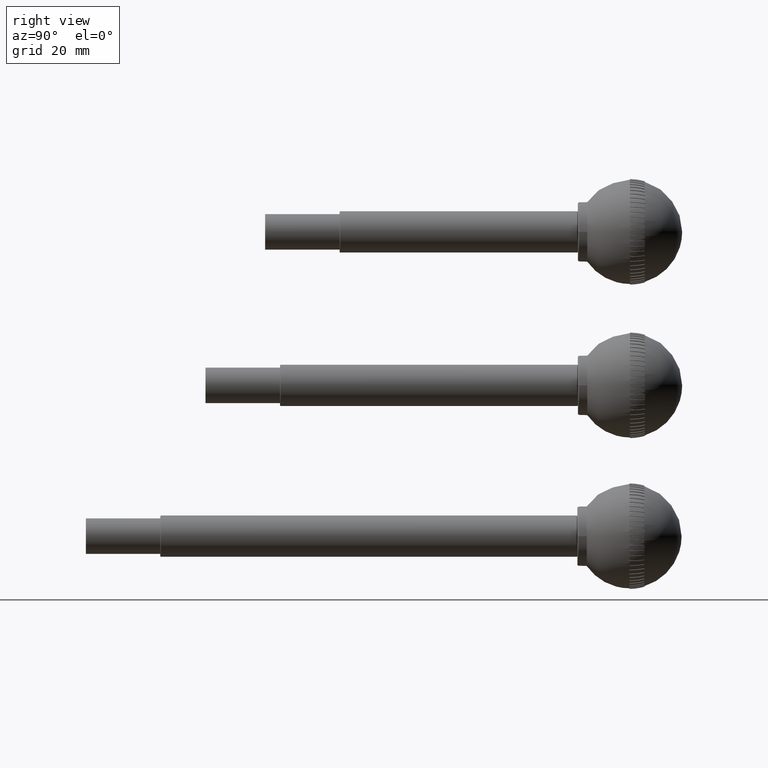
[diagram: clean part render]
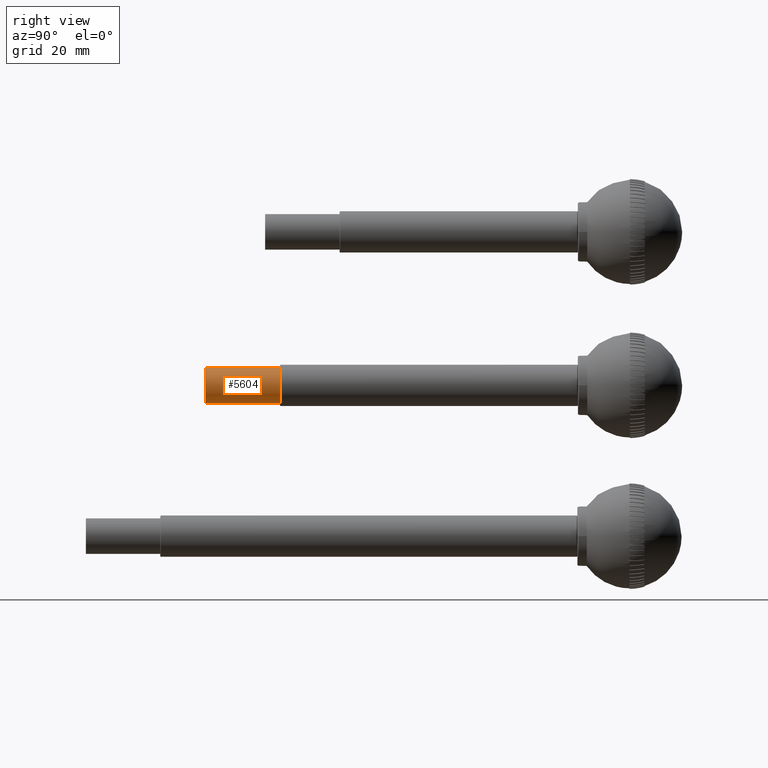
[diagram: same view with one face highlighted and labeled with its STEP entity id]
A machine part, right view. The second image highlights one B-rep face of the part: STEP entity #5604.
In plain terms, the highlighted cylindrical surface (bore or boss wall) has radius 6 mm, axis along (0, 1, -0).
Its self-contained STEP definition (entity closure, byte-faithful):
#866=CYLINDRICAL_SURFACE('',#6447,6.);
#947=FACE_BOUND('',#1687,.T.);
#1277=FACE_OUTER_BOUND('',#1686,.T.);
#1686=EDGE_LOOP('',(#4951));
#1687=EDGE_LOOP('',(#4952));
#2205=CIRCLE('',#6444,6.);
#2206=CIRCLE('',#6446,6.);
#2714=VERTEX_POINT('',#9999);
#2715=VERTEX_POINT('',#10002);
#3463=EDGE_CURVE('',#2714,#2714,#2205,.T.);
#3464=EDGE_CURVE('',#2715,#2715,#2206,.T.);
#4951=ORIENTED_EDGE('',*,*,#3464,.T.);
#4952=ORIENTED_EDGE('',*,*,#3463,.F.);
#5604=ADVANCED_FACE('',(#1277,#947),#866,.T.);
#6444=AXIS2_PLACEMENT_3D('',#10000,#8367,#8368);
#6446=AXIS2_PLACEMENT_3D('',#10003,#8371,#8372);
#6447=AXIS2_PLACEMENT_3D('',#10004,#8373,#8374);
#8367=DIRECTION('center_axis',(1.,0.,0.));
#8368=DIRECTION('ref_axis',(0.,0.,-1.));
#8371=DIRECTION('center_axis',(1.,0.,0.));
#8372=DIRECTION('ref_axis',(0.,0.,-1.));
#8373=DIRECTION('center_axis',(1.,0.,0.));
#8374=DIRECTION('ref_axis',(0.,1.,0.));
#9999=CARTESIAN_POINT('',(25.,6.,0.));
#10000=CARTESIAN_POINT('Origin',(25.,0.,0.));
#10002=CARTESIAN_POINT('',(0.,6.,0.));
#10003=CARTESIAN_POINT('Origin',(0.,0.,0.));
#10004=CARTESIAN_POINT('Origin',(12.5,0.,0.));